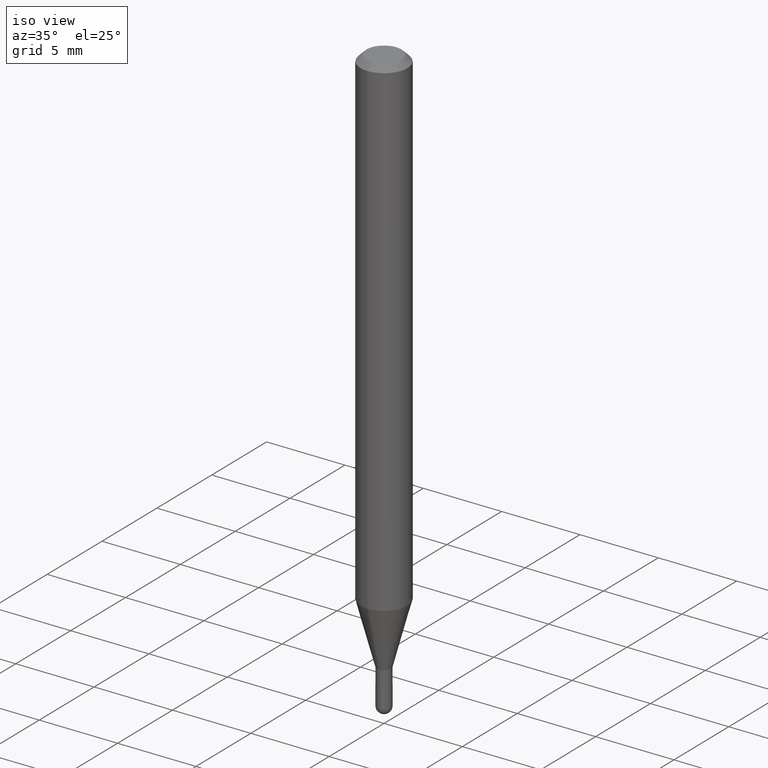
[diagram: clean part render]
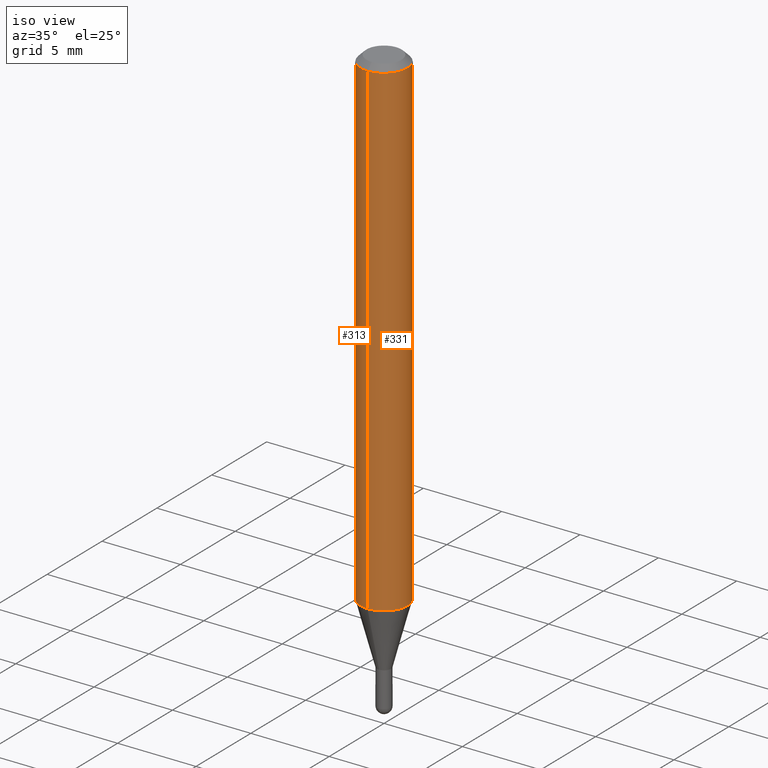
[diagram: same view with one multi-face feature highlighted, each face labeled with its STEP entity id]
A machine part, iso view. The highlighted faces form ONE feature: a constant-radius fillet chain: 2 tangent blend faces with common blend radius 1.4999 mm. The faces share edges in the B-rep.
Their STEP definitions:
[1] entity #313 (Cylinder):
#8 = DIRECTION ( 'NONE',  ( -6.982962677686265922E-15, -1.000000000000000000, 3.491520277055182964E-15 ) ) ;
#49 = CARTESIAN_POINT ( 'NONE',  ( -4.123439461173739834E-16, -0.05904999999999999832, 2.061742723601085597E-16 ) ) ;
#57 = EDGE_CURVE ( 'NONE', #59, #139, #192, .T. ) ;
#59 = VERTEX_POINT ( 'NONE', #430 ) ;
#61 = AXIS2_PLACEMENT_3D ( 'NONE', #468, #226, #182 ) ;
#83 = ORIENTED_EDGE ( 'NONE', *, *, #239, .T. ) ;
#96 = FACE_OUTER_BOUND ( 'NONE', #287, .T. ) ;
#98 = CARTESIAN_POINT ( 'NONE',  ( 3.022027104128707959E-29, -4.314749877405350668E-15, -1.235779699107030671 ) ) ;
#127 = VECTOR ( 'NONE', #222, 39.37007874015748143 ) ;
#138 = DIRECTION ( 'NONE',  ( -2.445441615776996841E-29, 3.491520277055183358E-15, 1.000000000000000000 ) ) ;
#139 = VERTEX_POINT ( 'NONE', #454 ) ;
#173 = EDGE_CURVE ( 'NONE', #139, #280, #245, .T. ) ;
#182 = DIRECTION ( 'NONE',  ( -6.982962677686265922E-15, -1.000000000000000000, 3.505890868245046092E-15 ) ) ;
#192 = LINE ( 'NONE', #302, #196 ) ;
#196 = VECTOR ( 'NONE', #275, 39.37007874015748143 ) ;
#221 = AXIS2_PLACEMENT_3D ( 'NONE', #336, #138, #8 ) ;
#222 = DIRECTION ( 'NONE',  ( -2.445441615776996841E-29, 3.491520277055183358E-15, 1.000000000000000000 ) ) ;
#226 = DIRECTION ( 'NONE',  ( -2.445441615776996841E-29, 3.491520277055183358E-15, 1.000000000000000000 ) ) ;
#239 = EDGE_CURVE ( 'NONE', #482, #280, #411, .T. ) ;
#240 = AXIS2_PLACEMENT_3D ( 'NONE', #98, #259, #330 ) ;
#245 = CIRCLE ( 'NONE', #61, 0.05904999999999999832 ) ;
#259 = DIRECTION ( 'NONE',  ( -2.445441615776996841E-29, 3.491520277055183358E-15, 1.000000000000000000 ) ) ;
#263 = CIRCLE ( 'NONE', #240, 0.05904999999999999832 ) ;
#268 = EDGE_CURVE ( 'NONE', #59, #482, #263, .T. ) ;
#275 = DIRECTION ( 'NONE',  ( -2.445441615776996841E-29, 3.491520277055183358E-15, 1.000000000000000000 ) ) ;
#280 = VERTEX_POINT ( 'NONE', #363 ) ;
#286 = ORIENTED_EDGE ( 'NONE', *, *, #268, .T. ) ;
#287 = EDGE_LOOP ( 'NONE', ( #484, #286, #83, #478 ) ) ;
#302 = CARTESIAN_POINT ( 'NONE',  ( 4.195754854663390985E-16, 0.05904999999999999832, -2.061742723601085597E-16 ) ) ;
#313 = ADVANCED_FACE ( 'NONE', ( #96 ), #452, .T. ) ;
#330 = DIRECTION ( 'NONE',  ( -6.982962677686265922E-15, -1.000000000000000000, 4.626330217890369336E-15 ) ) ;
#336 = CARTESIAN_POINT ( 'NONE',  ( 0.000000000000000000, 0.000000000000000000, 0.000000000000000000 ) ) ;
#345 = CARTESIAN_POINT ( 'NONE',  ( -4.123439461173439574E-16, -0.05905000000000432819, -1.235779699107030449 ) ) ;
#363 = CARTESIAN_POINT ( 'NONE',  ( -4.123439461173736383E-16, -0.05905000000000005383, -0.01499999999999987454 ) ) ;
#411 = LINE ( 'NONE', #49, #127 ) ;
#430 = CARTESIAN_POINT ( 'NONE',  ( 4.195754854663691246E-16, 0.05904999999999566845, -1.235779699107030893 ) ) ;
#452 = CYLINDRICAL_SURFACE ( 'NONE', #221, 0.05904999999999999832 ) ;
#454 = CARTESIAN_POINT ( 'NONE',  ( 4.195754854663695683E-16, 0.05904999999999994975, -0.01500000000000028741 ) ) ;
#468 = CARTESIAN_POINT ( 'NONE',  ( 3.668162423665515107E-31, -5.237280415582803362E-17, -0.01500000000000008098 ) ) ;
#478 = ORIENTED_EDGE ( 'NONE', *, *, #173, .F. ) ;
#482 = VERTEX_POINT ( 'NONE', #345 ) ;
#484 = ORIENTED_EDGE ( 'NONE', *, *, #57, .F. ) ;
[2] entity #331 (Cylinder):
#12 = CYLINDRICAL_SURFACE ( 'NONE', #437, 0.05904999999999999832 ) ;
#16 = DIRECTION ( 'NONE',  ( -6.982962677686265922E-15, -1.000000000000000000, 3.491520277055182964E-15 ) ) ;
#35 = DIRECTION ( 'NONE',  ( -2.445441615776996841E-29, 3.491520277055183358E-15, 1.000000000000000000 ) ) ;
#36 = EDGE_CURVE ( 'NONE', #482, #59, #238, .T. ) ;
#49 = CARTESIAN_POINT ( 'NONE',  ( -4.123439461173739834E-16, -0.05904999999999999832, 2.061742723601085597E-16 ) ) ;
#57 = EDGE_CURVE ( 'NONE', #59, #139, #192, .T. ) ;
#59 = VERTEX_POINT ( 'NONE', #430 ) ;
#86 = ORIENTED_EDGE ( 'NONE', *, *, #57, .T. ) ;
#91 = CARTESIAN_POINT ( 'NONE',  ( 0.000000000000000000, 0.000000000000000000, 0.000000000000000000 ) ) ;
#127 = VECTOR ( 'NONE', #222, 39.37007874015748143 ) ;
#139 = VERTEX_POINT ( 'NONE', #454 ) ;
#158 = CIRCLE ( 'NONE', #444, 0.05904999999999999832 ) ;
#162 = EDGE_LOOP ( 'NONE', ( #212, #86, #214, #198 ) ) ;
#192 = LINE ( 'NONE', #302, #196 ) ;
#196 = VECTOR ( 'NONE', #275, 39.37007874015748143 ) ;
#198 = ORIENTED_EDGE ( 'NONE', *, *, #239, .F. ) ;
#212 = ORIENTED_EDGE ( 'NONE', *, *, #36, .T. ) ;
#214 = ORIENTED_EDGE ( 'NONE', *, *, #476, .F. ) ;
#217 = FACE_OUTER_BOUND ( 'NONE', #162, .T. ) ;
#222 = DIRECTION ( 'NONE',  ( -2.445441615776996841E-29, 3.491520277055183358E-15, 1.000000000000000000 ) ) ;
#238 = CIRCLE ( 'NONE', #462, 0.05904999999999999832 ) ;
#239 = EDGE_CURVE ( 'NONE', #482, #280, #411, .T. ) ;
#255 = DIRECTION ( 'NONE',  ( -2.445441615776996841E-29, 3.491520277055183358E-15, 1.000000000000000000 ) ) ;
#273 = DIRECTION ( 'NONE',  ( -2.445441615776996841E-29, 3.491520277055183358E-15, 1.000000000000000000 ) ) ;
#275 = DIRECTION ( 'NONE',  ( -2.445441615776996841E-29, 3.491520277055183358E-15, 1.000000000000000000 ) ) ;
#277 = DIRECTION ( 'NONE',  ( -6.982962677686265922E-15, -1.000000000000000000, 3.505890868245046092E-15 ) ) ;
#280 = VERTEX_POINT ( 'NONE', #363 ) ;
#302 = CARTESIAN_POINT ( 'NONE',  ( 4.195754854663390985E-16, 0.05904999999999999832, -2.061742723601085597E-16 ) ) ;
#331 = ADVANCED_FACE ( 'NONE', ( #217 ), #12, .T. ) ;
#345 = CARTESIAN_POINT ( 'NONE',  ( -4.123439461173439574E-16, -0.05905000000000432819, -1.235779699107030449 ) ) ;
#353 = DIRECTION ( 'NONE',  ( -6.982962677686265922E-15, -1.000000000000000000, 4.626330217890369336E-15 ) ) ;
#363 = CARTESIAN_POINT ( 'NONE',  ( -4.123439461173736383E-16, -0.05905000000000005383, -0.01499999999999987454 ) ) ;
#381 = CARTESIAN_POINT ( 'NONE',  ( 3.022027104128707959E-29, -4.314749877405350668E-15, -1.235779699107030671 ) ) ;
#411 = LINE ( 'NONE', #49, #127 ) ;
#430 = CARTESIAN_POINT ( 'NONE',  ( 4.195754854663691246E-16, 0.05904999999999566845, -1.235779699107030893 ) ) ;
#437 = AXIS2_PLACEMENT_3D ( 'NONE', #91, #255, #16 ) ;
#444 = AXIS2_PLACEMENT_3D ( 'NONE', #455, #35, #277 ) ;
#454 = CARTESIAN_POINT ( 'NONE',  ( 4.195754854663695683E-16, 0.05904999999999994975, -0.01500000000000028741 ) ) ;
#455 = CARTESIAN_POINT ( 'NONE',  ( 3.668162423665515107E-31, -5.237280415582803362E-17, -0.01500000000000008098 ) ) ;
#462 = AXIS2_PLACEMENT_3D ( 'NONE', #381, #273, #353 ) ;
#476 = EDGE_CURVE ( 'NONE', #280, #139, #158, .T. ) ;
#482 = VERTEX_POINT ( 'NONE', #345 ) ;